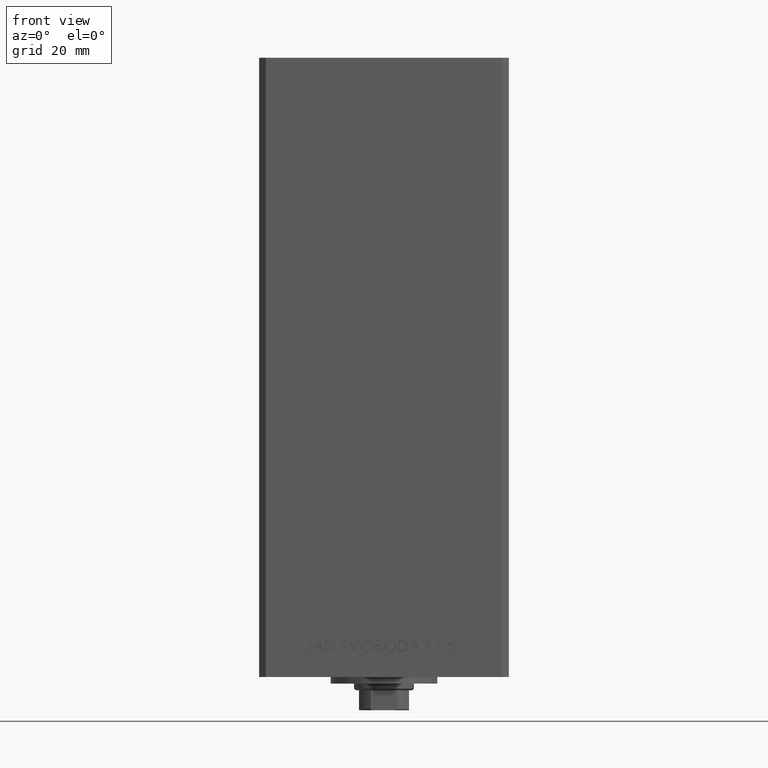
[diagram: clean part render]
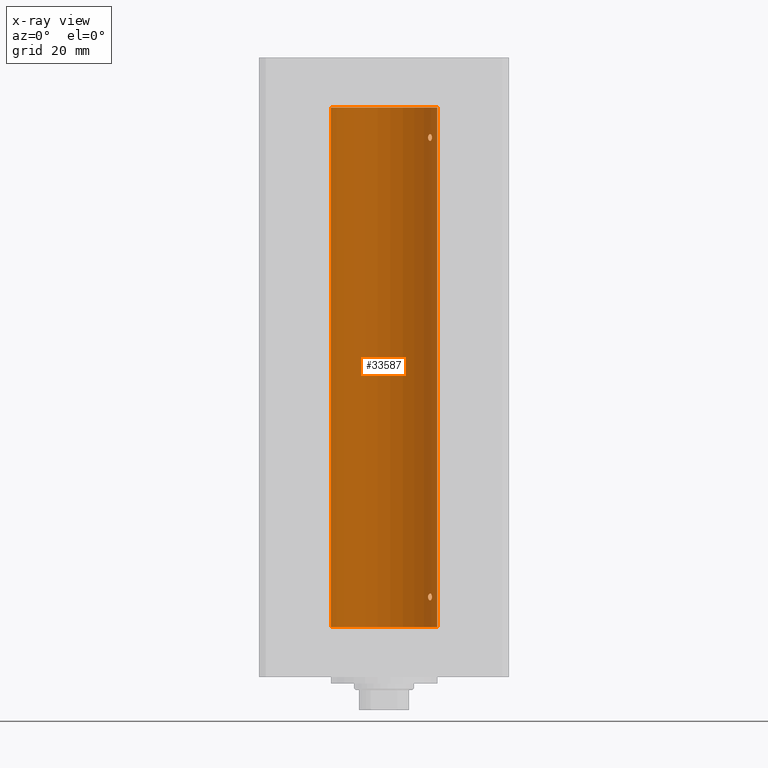
[diagram: x-ray — body ghosted, one internal face saturated and labeled with its STEP entity id]
A machine part, front view, then the same camera in x-ray: the body is ghosted and one INTERNAL B-rep face — a face not visible from any outside direction — is saturated and labeled: STEP entity #33587.
In plain terms, the highlighted cylindrical surface (partial cylindrical patch) has radius 16 mm, axis along (-0, -0, -1).
Its self-contained STEP definition (entity closure, byte-faithful):
#668 = B_SPLINE_CURVE_WITH_KNOTS ( 'NONE', 3,
 ( #11550, #19013, #41188, #30727, #26736, #45905, #30968, #26983, #34204, #7806, #11796, #8052, #19506, #23250, #15762, #1541, #46650, #27976, #39661, #24231 ),
 .UNSPECIFIED., .F., .F.,
 ( 4, 2, 2, 2, 2, 2, 2, 2, 2, 4 ),
 ( 2.818592028051833686E-17, 0.0004221896201403299359, 0.0008443792402806316825, 0.001266568860420933538, 0.001688758480561235176, 0.002110948100701536597, 0.002533137720841838886, 0.002955327340982140307, 0.003166422151052290801, 0.003377516961122441295 ),
 .UNSPECIFIED. ) ;
#905 = DIRECTION ( 'NONE',  ( 1.000000000000000000, 0.000000000000000000, 0.000000000000000000 ) ) ;
#1541 = CARTESIAN_POINT ( 'NONE',  ( 14.35867515080208712, 7.058999333127631282, 146.6544211985381310 ) ) ;
#1770 = CARTESIAN_POINT ( 'NONE',  ( 16.00000000000000000, 1.959434878635765131E-15, 0.000000000000000000 ) ) ;
#1886 = CARTESIAN_POINT ( 'NONE',  ( 13.32447566991143617, 8.857922402414489582, 147.5314381199037825 ) ) ;
#2413 = EDGE_CURVE ( 'NONE', #7449, #20507, #48061, .T. ) ;
#2643 = DIRECTION ( 'NONE',  ( -0.000000000000000000, -0.000000000000000000, -1.000000000000000000 ) ) ;
#4989 = ORIENTED_EDGE ( 'NONE', *, *, #15666, .F. ) ;
#5098 = CARTESIAN_POINT ( 'NONE',  ( 13.37722806521492025, 8.778496895713756132, 9.640492215702138878 ) ) ;
#5354 = CARTESIAN_POINT ( 'NONE',  ( 13.32447566991143439, 8.857922402414480700, 9.531438119903825168 ) ) ;
#5535 = CARTESIAN_POINT ( 'NONE',  ( 13.98799506618804855, 7.768796316246572964, 8.018907818619863903 ) ) ;
#5897 = AXIS2_PLACEMENT_3D ( 'NONE', #47138, #20501, #35178 ) ;
#6726 = CARTESIAN_POINT ( 'NONE',  ( 13.22875655532295447, 8.999999999999998224, 8.999999999999994671 ) ) ;
#6796 = VERTEX_POINT ( 'NONE', #8450 ) ;
#7402 = ORIENTED_EDGE ( 'NONE', *, *, #2413, .F. ) ;
#7449 = VERTEX_POINT ( 'NONE', #1770 ) ;
#7806 = CARTESIAN_POINT ( 'NONE',  ( 13.92009581174527355, 7.889943515799701323, 145.9984609092137759 ) ) ;
#7851 = DIRECTION ( 'NONE',  ( -1.000000000000000000, 0.000000000000000000, 0.000000000000000000 ) ) ;
#8052 = CARTESIAN_POINT ( 'NONE',  ( 14.11701305531884465, 7.531808851198014132, 146.1073667830907254 ) ) ;
#8285 = CARTESIAN_POINT ( 'NONE',  ( 13.77746685470184040, 8.136441676695669756, 8.001713142955473757 ) ) ;
#8353 = CARTESIAN_POINT ( 'NONE',  ( 13.70635209652260222, 8.259251269739738888, 9.996100208672867637 ) ) ;
#8450 = CARTESIAN_POINT ( 'NONE',  ( 14.38749456993875953, 6.999999999998769873, 8.999999999999467093 ) ) ;
#8774 = CARTESIAN_POINT ( 'NONE',  ( 14.11701305531884287, 7.531808851198022126, 8.107366783090686368 ) ) ;
#8835 = CARTESIAN_POINT ( 'NONE',  ( 13.22875655532295447, 8.999999999999998224, 8.999999999999994671 ) ) ;
#9631 = CARTESIAN_POINT ( 'NONE',  ( 13.55739033881264710, 8.499771822136690247, 147.9029833364132855 ) ) ;
#10510 = ORIENTED_EDGE ( 'NONE', *, *, #11043, .F. ) ;
#11043 = EDGE_CURVE ( 'NONE', #22760, #7449, #33297, .T. ) ;
#11550 = CARTESIAN_POINT ( 'NONE',  ( 13.22875655532295447, 8.999999999999996447, 146.9999999999999716 ) ) ;
#11796 = CARTESIAN_POINT ( 'NONE',  ( 13.98799506618805211, 7.768796316246563194, 146.0189078186198799 ) ) ;
#12281 = CARTESIAN_POINT ( 'NONE',  ( 14.38749456993875953, 6.999999999998769873, 8.999999999999467093 ) ) ;
#12346 = CARTESIAN_POINT ( 'NONE',  ( 14.38749456993875953, 6.999999999998769873, 8.999999999999467093 ) ) ;
#12588 = CARTESIAN_POINT ( 'NONE',  ( 13.22875655532295625, 9.000000000000000000, 9.142659515501296852 ) ) ;
#12772 = CARTESIAN_POINT ( 'NONE',  ( 13.49787029139620920, 8.591848682074017418, 8.183814587142569152 ) ) ;
#12886 = CARTESIAN_POINT ( 'NONE',  ( 13.22875655532295447, 8.999999999999996447, 146.9999999999999716 ) ) ;
#13013 = CARTESIAN_POINT ( 'NONE',  ( 13.37714181818049575, 8.778635597591465611, 8.359554766746297716 ) ) ;
#13344 = CARTESIAN_POINT ( 'NONE',  ( 14.38749456993875775, 6.999999999998771649, 146.9999999999994600 ) ) ;
#14159 = DIRECTION ( 'NONE',  ( -0.000000000000000000, 0.000000000000000000, 1.000000000000000000 ) ) ;
#14234 = ORIENTED_EDGE ( 'NONE', *, *, #28494, .F. ) ;
#14732 = ORIENTED_EDGE ( 'NONE', *, *, #28567, .T. ) ;
#15666 = EDGE_CURVE ( 'NONE', #6796, #46144, #16718, .T. ) ;
#15762 = CARTESIAN_POINT ( 'NONE',  ( 14.31615587311060978, 7.145052533203036127, 146.4626987052745619 ) ) ;
#15820 = CARTESIAN_POINT ( 'NONE',  ( 13.98853479819183043, 7.771757428685174496, 10.00365939203466681 ) ) ;
#16017 = EDGE_LOOP ( 'NONE', ( #10510, #14732, #21727, #7402 ) ) ;
#16496 = CARTESIAN_POINT ( 'NONE',  ( 13.56526576050683452, 8.485384079562178883, 8.116990538131117816 ) ) ;
#16613 = CARTESIAN_POINT ( 'NONE',  ( 14.31678893103185679, 7.143775209822727845, 147.5347800480706439 ) ) ;
#16718 = B_SPLINE_CURVE_WITH_KNOTS ( 'NONE', 3,
 ( #12346, #46947, #31512, #46454, #27782, #46702, #15820, #8353, #24530, #5098, #5354, #23792, #12588, #8835 ),
 .UNSPECIFIED., .F., .F.,
 ( 4, 2, 2, 2, 2, 2, 4 ),
 ( 0.003377516961122438259, 0.003798778705083848996, 0.004220040449045259733, 0.005062563936968083808, 0.005905087424890908751, 0.006326349168852319488, 0.006747610912813730225 ),
 .UNSPECIFIED. ) ;
#16751 = CARTESIAN_POINT ( 'NONE',  ( 14.17516445690067428, 7.421373518623910037, 8.173695665549439937 ) ) ;
#17320 = CARTESIAN_POINT ( 'NONE',  ( -16.00000000000000000, 0.000000000000000000, 156.0000000000000000 ) ) ;
#18810 = CYLINDRICAL_SURFACE ( 'NONE', #48875, 16.00000000000000000 ) ;
#19013 = CARTESIAN_POINT ( 'NONE',  ( 13.22875655532295802, 8.999999999999998224, 146.8570262609357542 ) ) ;
#19506 = CARTESIAN_POINT ( 'NONE',  ( 14.17516445690067250, 7.421373518623910037, 146.1736956655494168 ) ) ;
#19742 = CARTESIAN_POINT ( 'NONE',  ( 14.35867515080208356, 7.058999333127636611, 8.654421198538130966 ) ) ;
#20495 = CARTESIAN_POINT ( 'NONE',  ( 13.70633586603034715, 8.255576010093811590, 8.025328610501505366 ) ) ;
#20501 = DIRECTION ( 'NONE',  ( -0.000000000000000000, 0.000000000000000000, 1.000000000000000000 ) ) ;
#20507 = VERTEX_POINT ( 'NONE', #45517 ) ;
#20611 = CARTESIAN_POINT ( 'NONE',  ( 14.38749456993835807, 6.999999999999900524, 147.1411069770374809 ) ) ;
#20743 = CARTESIAN_POINT ( 'NONE',  ( 13.92009581174526822, 7.889943515799717311, 7.998460909213807035 ) ) ;
#20854 = CARTESIAN_POINT ( 'NONE',  ( 14.12440581436492515, 7.519967855344591001, 147.9168456675480172 ) ) ;
#21096 = CARTESIAN_POINT ( 'NONE',  ( 14.27601081693604179, 7.225489892961972416, 147.6464466749832809 ) ) ;
#21326 = EDGE_CURVE ( 'NONE', #30253, #36110, #37356, .T. ) ;
#21638 = CARTESIAN_POINT ( 'NONE',  ( 0.000000000000000000, 0.000000000000000000, 0.000000000000000000 ) ) ;
#21727 = ORIENTED_EDGE ( 'NONE', *, *, #44769, .T. ) ;
#22671 = CARTESIAN_POINT ( 'NONE',  ( -16.00000000000000000, 0.000000000000000000, 156.0000000000000000 ) ) ;
#22760 = VERTEX_POINT ( 'NONE', #44034 ) ;
#23250 = CARTESIAN_POINT ( 'NONE',  ( 14.27574973237574874, 7.225997637813491359, 146.3530782107463608 ) ) ;
#23398 = CIRCLE ( 'NONE', #5897, 16.00000000000000000 ) ;
#23792 = CARTESIAN_POINT ( 'NONE',  ( 13.25022586032984329, 8.968609469449802418, 9.283289638962903823 ) ) ;
#24231 = CARTESIAN_POINT ( 'NONE',  ( 14.38749456993875775, 6.999999999998771649, 146.9999999999994600 ) ) ;
#24470 = CARTESIAN_POINT ( 'NONE',  ( 13.25010819131475159, 8.968783812673564171, 8.717198662283735189 ) ) ;
#24530 = CARTESIAN_POINT ( 'NONE',  ( 13.55739033881265065, 8.499771822136686694, 9.902983336413296200 ) ) ;
#25039 = LINE ( 'NONE', #17320, #29331 ) ;
#26283 = FACE_BOUND ( 'NONE', #29585, .T. ) ;
#26736 = CARTESIAN_POINT ( 'NONE',  ( 13.37714181818050641, 8.778635597591444295, 146.3595547667462995 ) ) ;
#26777 = CARTESIAN_POINT ( 'NONE',  ( 0.000000000000000000, 0.000000000000000000, 156.0000000000000000 ) ) ;
#26983 = CARTESIAN_POINT ( 'NONE',  ( 13.70633586603035781, 8.255576010093792050, 146.0253286105015036 ) ) ;
#27242 = ORIENTED_EDGE ( 'NONE', *, *, #21326, .F. ) ;
#27782 = CARTESIAN_POINT ( 'NONE',  ( 14.27601081693604712, 7.225489892961965310, 9.646446674983275571 ) ) ;
#27969 = CARTESIAN_POINT ( 'NONE',  ( 13.22875655532295447, 8.999999999999998224, 8.999999999999994671 ) ) ;
#27976 = CARTESIAN_POINT ( 'NONE',  ( 14.38374727663542707, 7.007716049903077504, 146.8576079294365115 ) ) ;
#28494 = EDGE_CURVE ( 'NONE', #36110, #30253, #668, .T. ) ;
#28567 = EDGE_CURVE ( 'NONE', #22760, #46228, #23398, .T. ) ;
#29331 = VECTOR ( 'NONE', #43968, 1000.000000000000000 ) ;
#29585 = EDGE_LOOP ( 'NONE', ( #14234, #27242 ) ) ;
#30253 = VERTEX_POINT ( 'NONE', #13344 ) ;
#30325 = ORIENTED_EDGE ( 'NONE', *, *, #32424, .F. ) ;
#30727 = CARTESIAN_POINT ( 'NONE',  ( 13.32443414199769194, 8.857985377928093484, 146.4686058303161360 ) ) ;
#30968 = CARTESIAN_POINT ( 'NONE',  ( 13.56526576050684518, 8.485384079562161119, 146.1169905381311196 ) ) ;
#31512 = CARTESIAN_POINT ( 'NONE',  ( 14.37260515874679534, 7.030802976542521954, 9.282431798581109561 ) ) ;
#31812 = CARTESIAN_POINT ( 'NONE',  ( 13.98853479819182866, 7.771757428685186042, 148.0036593920346775 ) ) ;
#31944 = CARTESIAN_POINT ( 'NONE',  ( 14.31615587311060445, 7.145052533203043232, 8.462698705274526390 ) ) ;
#32424 = EDGE_CURVE ( 'NONE', #46144, #6796, #43199, .T. ) ;
#33297 = LINE ( 'NONE', #45000, #48232 ) ;
#33511 = FACE_BOUND ( 'NONE', #41763, .T. ) ;
#33587 = ADVANCED_FACE ( 'NONE', ( #45704, #26283, #33511 ), #18810, .F. ) ;
#34204 = CARTESIAN_POINT ( 'NONE',  ( 13.77746685470184929, 8.136441676695655545, 146.0017131429554240 ) ) ;
#35178 = DIRECTION ( 'NONE',  ( 1.000000000000000000, 0.000000000000000000, 0.000000000000000000 ) ) ;
#36110 = VERTEX_POINT ( 'NONE', #41256 ) ;
#37356 = B_SPLINE_CURVE_WITH_KNOTS ( 'NONE', 3,
 ( #39013, #20611, #43758, #16613, #21096, #20854, #31812, #47242, #9631, #43513, #1886, #39769, #47001, #12886 ),
 .UNSPECIFIED., .F., .F.,
 ( 4, 2, 2, 2, 2, 2, 4 ),
 ( 0.003377516961122441295, 0.003798778705083836419, 0.004220040449045231977, 0.005062563936968072532, 0.005905087424890913088, 0.006326349168852335100, 0.006747610912813756245 ),
 .UNSPECIFIED. ) ;
#38659 = CARTESIAN_POINT ( 'NONE',  ( 14.38374727663542707, 7.007716049903074840, 8.857607929436484895 ) ) ;
#38901 = CARTESIAN_POINT ( 'NONE',  ( 13.22875655532296157, 9.000000000000000000, 8.857026260935734641 ) ) ;
#39013 = CARTESIAN_POINT ( 'NONE',  ( 14.38749456993875775, 6.999999999998771649, 146.9999999999994600 ) ) ;
#39311 = AXIS2_PLACEMENT_3D ( 'NONE', #21638, #14159, #905 ) ;
#39655 = CARTESIAN_POINT ( 'NONE',  ( 13.32443414199768839, 8.857985377928104143, 8.468605830316136007 ) ) ;
#39661 = CARTESIAN_POINT ( 'NONE',  ( 14.38749456993829057, 7.000000000000029310, 146.9292911095188003 ) ) ;
#39769 = CARTESIAN_POINT ( 'NONE',  ( 13.25022586032983618, 8.968609469449805971, 147.2832896389628843 ) ) ;
#41188 = CARTESIAN_POINT ( 'NONE',  ( 13.25010819131476048, 8.968783812673557065, 146.7171986622837210 ) ) ;
#41256 = CARTESIAN_POINT ( 'NONE',  ( 13.22875655532295447, 8.999999999999996447, 146.9999999999999716 ) ) ;
#41763 = EDGE_LOOP ( 'NONE', ( #30325, #4989 ) ) ;
#41970 = DIRECTION ( 'NONE',  ( -0.000000000000000000, -0.000000000000000000, -1.000000000000000000 ) ) ;
#42405 = CARTESIAN_POINT ( 'NONE',  ( 14.36932461189096877, 7.037242368448794139, 8.720713977669424466 ) ) ;
#43199 = B_SPLINE_CURVE_WITH_KNOTS ( 'NONE', 3,
 ( #27969, #38901, #24470, #39655, #13013, #12772, #16496, #20495, #8285, #20743, #5535, #8774, #16751, #46142, #31944, #19742, #42405, #38659, #46884, #12281 ),
 .UNSPECIFIED., .F., .F.,
 ( 4, 2, 2, 2, 2, 2, 2, 2, 2, 4 ),
 ( 0.000000000000000000, 0.0004221896201403055413, 0.0008443792402806110826, 0.001266568860420916624, 0.001688758480561222165, 0.002110948100701527490, 0.002533137720841833248, 0.002955327340982138572, 0.003166422151052288633, 0.003377516961122438259 ),
 .UNSPECIFIED. ) ;
#43513 = CARTESIAN_POINT ( 'NONE',  ( 13.37722806521492203, 8.778496895713763237, 147.6404922157021247 ) ) ;
#43758 = CARTESIAN_POINT ( 'NONE',  ( 14.37260515874679179, 7.030802976542521954, 147.2824317985810865 ) ) ;
#43968 = DIRECTION ( 'NONE',  ( -0.000000000000000000, -0.000000000000000000, -1.000000000000000000 ) ) ;
#44034 = CARTESIAN_POINT ( 'NONE',  ( 16.00000000000000000, 1.959434878635765131E-15, 156.0000000000000000 ) ) ;
#44769 = EDGE_CURVE ( 'NONE', #46228, #20507, #25039, .T. ) ;
#45000 = CARTESIAN_POINT ( 'NONE',  ( 16.00000000000000000, 1.959434878635765131E-15, 156.0000000000000000 ) ) ;
#45517 = CARTESIAN_POINT ( 'NONE',  ( -16.00000000000000000, 0.000000000000000000, 0.000000000000000000 ) ) ;
#45704 = FACE_OUTER_BOUND ( 'NONE', #16017, .T. ) ;
#45905 = CARTESIAN_POINT ( 'NONE',  ( 13.49787029139622696, 8.591848682073997878, 146.1838145871425354 ) ) ;
#46142 = CARTESIAN_POINT ( 'NONE',  ( 14.27574973237574696, 7.225997637813494023, 8.353078210746339494 ) ) ;
#46144 = VERTEX_POINT ( 'NONE', #6726 ) ;
#46228 = VERTEX_POINT ( 'NONE', #22671 ) ;
#46454 = CARTESIAN_POINT ( 'NONE',  ( 14.31678893103186390, 7.143775209822729622, 9.534780048070684799 ) ) ;
#46650 = CARTESIAN_POINT ( 'NONE',  ( 14.36932461189096877, 7.037242368448795915, 146.7207139776694476 ) ) ;
#46702 = CARTESIAN_POINT ( 'NONE',  ( 14.12440581436493225, 7.519967855344579455, 9.916845667547992349 ) ) ;
#46884 = CARTESIAN_POINT ( 'NONE',  ( 14.38749456993828879, 7.000000000000026645, 8.929291109518763037 ) ) ;
#46947 = CARTESIAN_POINT ( 'NONE',  ( 14.38749456993835807, 6.999999999999894307, 9.141106977037484427 ) ) ;
#47001 = CARTESIAN_POINT ( 'NONE',  ( 13.22875655532295092, 8.999999999999994671, 147.1426595155012649 ) ) ;
#47138 = CARTESIAN_POINT ( 'NONE',  ( 0.000000000000000000, 0.000000000000000000, 156.0000000000000000 ) ) ;
#47242 = CARTESIAN_POINT ( 'NONE',  ( 13.70635209652259334, 8.259251269739747769, 147.9961002086728570 ) ) ;
#48061 = CIRCLE ( 'NONE', #39311, 16.00000000000000000 ) ;
#48232 = VECTOR ( 'NONE', #2643, 1000.000000000000000 ) ;
#48875 = AXIS2_PLACEMENT_3D ( 'NONE', #26777, #41970, #7851 ) ;